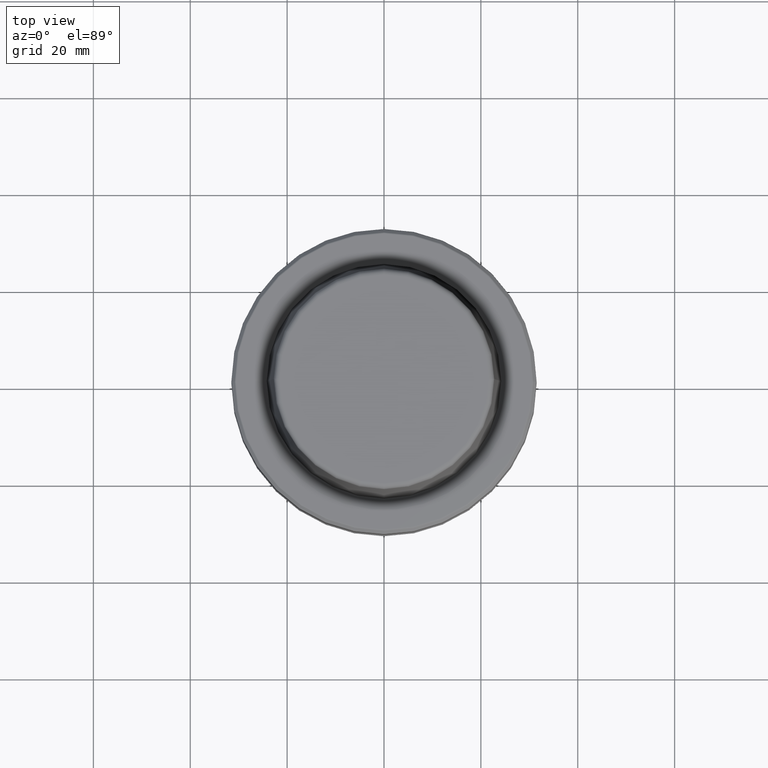
[diagram: clean part render]
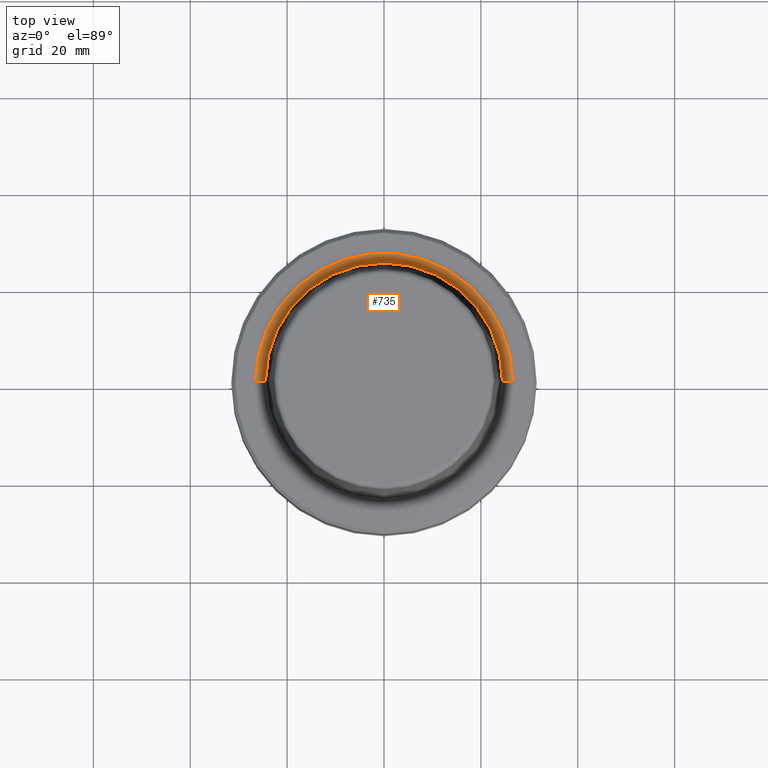
[diagram: same view with one face highlighted and labeled with its STEP entity id]
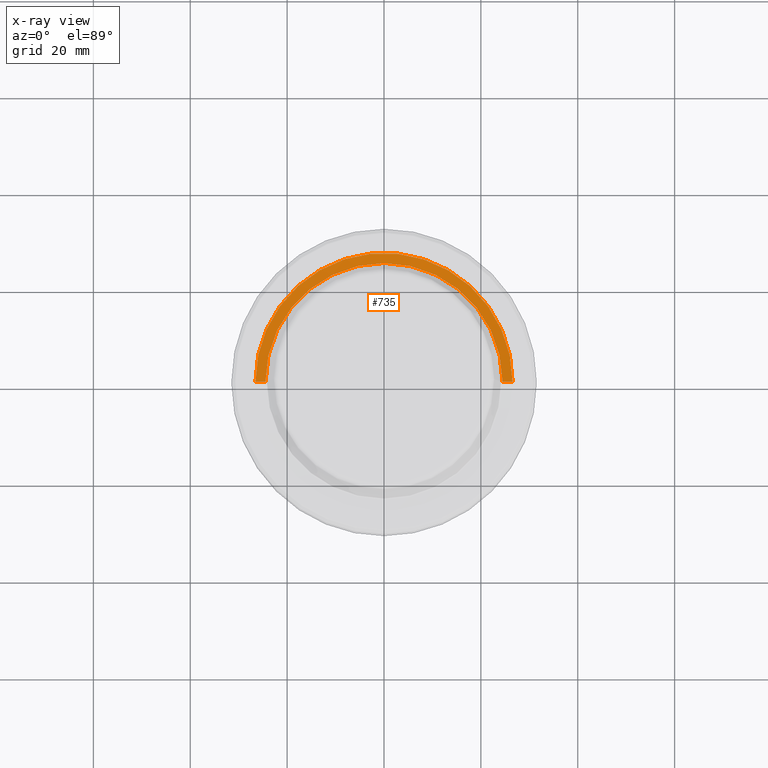
[diagram: x-ray of the same camera — body ghosted, the highlighted face saturated]
A machine part, top view. The second image highlights one B-rep face of the part: STEP entity #735.
The next image is the same camera in x-ray: the body ghosted, the highlighted face saturated — about 0% of this face is hidden behind the body in this view.
In plain terms, the highlighted conical surface has half-angle 80 deg.
Its self-contained STEP definition (entity closure, byte-faithful):
#15 = DIRECTION ( 'NONE',  ( 1.000000000000000000, 0.0000000000000000000, 0.0000000000000000000 ) ) ;
#24 = EDGE_CURVE ( 'NONE', #254, #1049, #1117, .T. ) ;
#32 = CIRCLE ( 'NONE', #219, 26.52499999999999900 ) ;
#69 = ORIENTED_EDGE ( 'NONE', *, *, #220, .T. ) ;
#73 = DIRECTION ( 'NONE',  ( -0.0000000000000000000, -0.0000000000000000000, 1.000000000000000000 ) ) ;
#124 = LINE ( 'NONE', #1222, #794 ) ;
#219 = AXIS2_PLACEMENT_3D ( 'NONE', #356, #73, #952 ) ;
#220 = EDGE_CURVE ( 'NONE', #1069, #1049, #32, .T. ) ;
#254 = VERTEX_POINT ( 'NONE', #295 ) ;
#272 = FACE_OUTER_BOUND ( 'NONE', #887, .T. ) ;
#295 = CARTESIAN_POINT ( 'NONE',  ( -24.47682408883346700, 3.122961031053313900E-015, -0.3611486743758107700 ) ) ;
#335 = VECTOR ( 'NONE', #914, 1000.000000000000200 ) ;
#340 = DIRECTION ( 'NONE',  ( -0.0000000000000000000, -0.0000000000000000000, 1.000000000000000000 ) ) ;
#356 = CARTESIAN_POINT ( 'NONE',  ( 0.0000000000000000000, 0.0000000000000000000, 0.0000000000000000000 ) ) ;
#403 = CONICAL_SURFACE ( 'NONE', #1027, 26.52499999999999900, 1.396263401595460500 ) ;
#404 = ORIENTED_EDGE ( 'NONE', *, *, #1187, .T. ) ;
#578 = CARTESIAN_POINT ( 'NONE',  ( 24.47682408883346700, 0.0000000000000000000, -0.3611486743758107700 ) ) ;
#598 = CARTESIAN_POINT ( 'NONE',  ( -26.52499999999999900, 3.248375634738354300E-015, 0.0000000000000000000 ) ) ;
#640 = DIRECTION ( 'NONE',  ( 0.9848077530122074700, 0.0000000000000000000, 0.1736481776669334700 ) ) ;
#674 = DIRECTION ( 'NONE',  ( -0.0000000000000000000, -0.0000000000000000000, 1.000000000000000000 ) ) ;
#716 = ORIENTED_EDGE ( 'NONE', *, *, #1091, .F. ) ;
#721 = CARTESIAN_POINT ( 'NONE',  ( -26.52499999999999900, 3.248375634738354300E-015, 0.0000000000000000000 ) ) ;
#722 = ORIENTED_EDGE ( 'NONE', *, *, #24, .F. ) ;
#735 = ADVANCED_FACE ( 'NONE', ( #272 ), #403, .F. ) ;
#794 = VECTOR ( 'NONE', #640, 1000.000000000000200 ) ;
#859 = AXIS2_PLACEMENT_3D ( 'NONE', #1247, #674, #15 ) ;
#872 = CARTESIAN_POINT ( 'NONE',  ( 0.0000000000000000000, 0.0000000000000000000, 0.0000000000000000000 ) ) ;
#887 = EDGE_LOOP ( 'NONE', ( #722, #716, #404, #69 ) ) ;
#914 = DIRECTION ( 'NONE',  ( -0.9848077530122074700, 1.206041662501897100E-016, 0.1736481776669334700 ) ) ;
#940 = CIRCLE ( 'NONE', #859, 24.47682408883346700 ) ;
#952 = DIRECTION ( 'NONE',  ( 1.000000000000000000, 0.0000000000000000000, 0.0000000000000000000 ) ) ;
#1027 = AXIS2_PLACEMENT_3D ( 'NONE', #872, #340, #1248 ) ;
#1049 = VERTEX_POINT ( 'NONE', #598 ) ;
#1069 = VERTEX_POINT ( 'NONE', #1159 ) ;
#1091 = EDGE_CURVE ( 'NONE', #1144, #254, #940, .T. ) ;
#1117 = LINE ( 'NONE', #721, #335 ) ;
#1144 = VERTEX_POINT ( 'NONE', #578 ) ;
#1159 = CARTESIAN_POINT ( 'NONE',  ( 26.52499999999999900, 0.0000000000000000000, 0.0000000000000000000 ) ) ;
#1187 = EDGE_CURVE ( 'NONE', #1144, #1069, #124, .T. ) ;
#1222 = CARTESIAN_POINT ( 'NONE',  ( 26.52499999999999900, 0.0000000000000000000, 0.0000000000000000000 ) ) ;
#1247 = CARTESIAN_POINT ( 'NONE',  ( 0.0000000000000000000, 0.0000000000000000000, -0.3611486743758107700 ) ) ;
#1248 = DIRECTION ( 'NONE',  ( 1.000000000000000000, 0.0000000000000000000, 0.0000000000000000000 ) ) ;